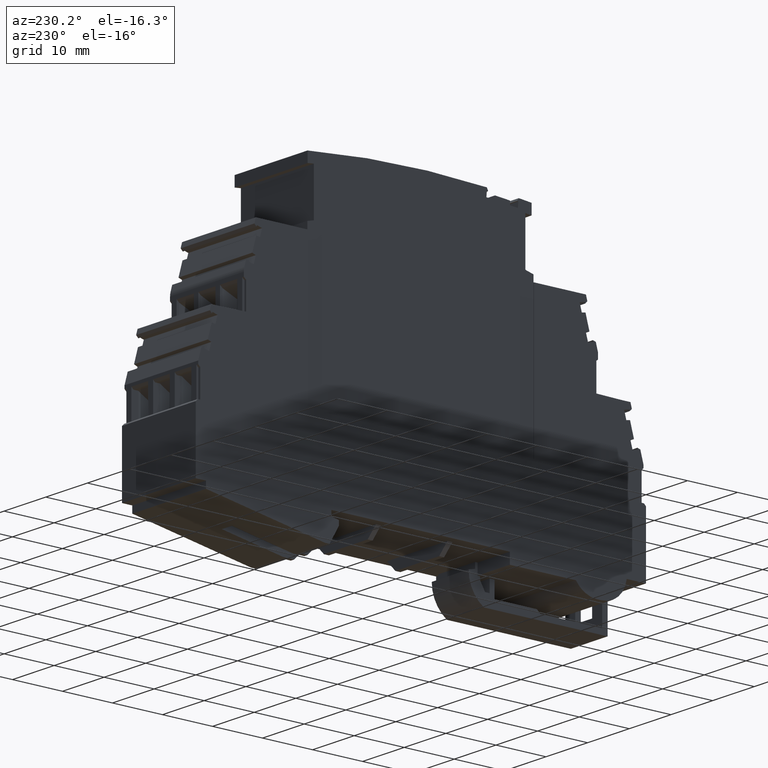
[diagram: clean part render]
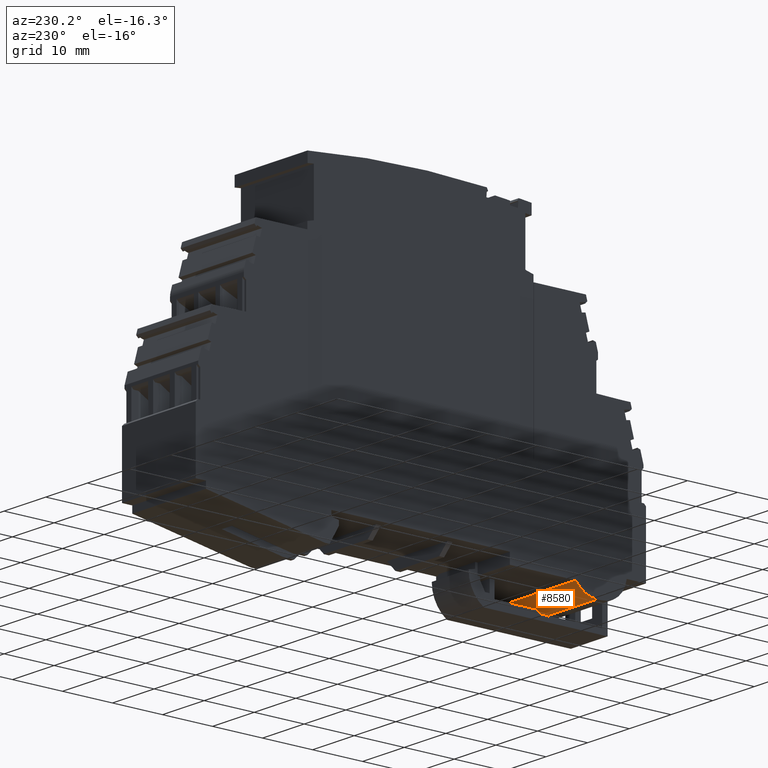
[diagram: same view with one face highlighted and labeled with its STEP entity id]
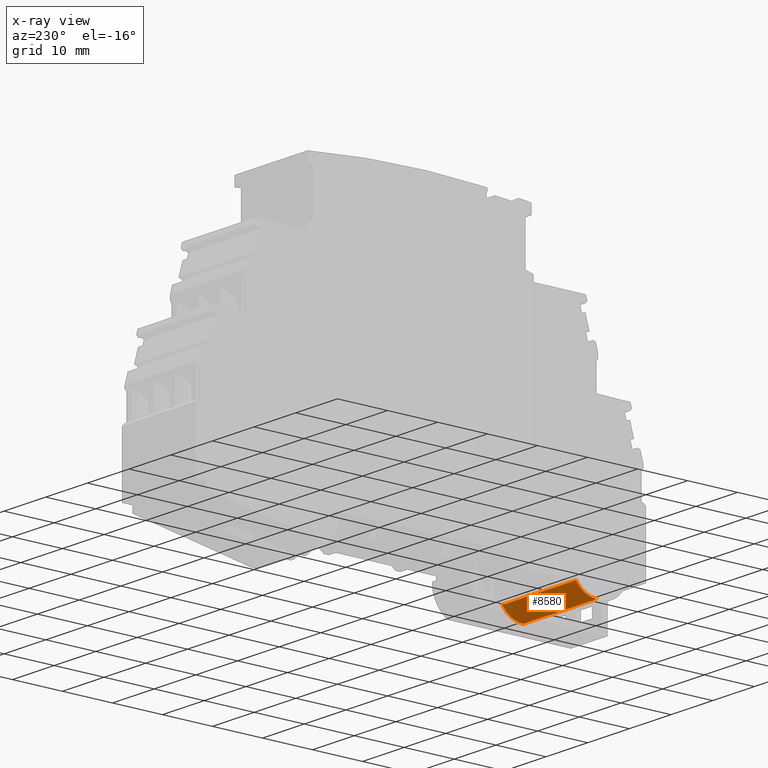
[diagram: x-ray of the same camera — body ghosted, the highlighted face saturated]
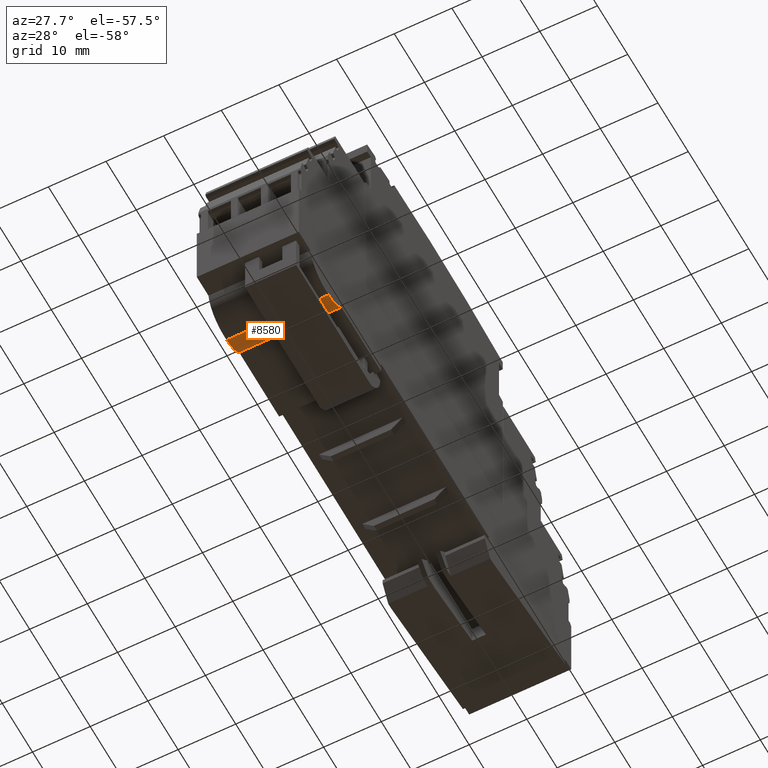
[diagram: same view with one face highlighted and labeled with its STEP entity id]
A machine part, auxiliary view. The second image highlights one B-rep face of the part: STEP entity #8580.
The next image is the same camera in x-ray: the body ghosted, the highlighted face saturated — about 5% of this face is hidden behind the body in this view.
A second angle (auxiliary view) of the same face is appended — the face is thin or edge-on in the first view.
In plain terms, the highlighted cylindrical surface (edge-blend (fillet) strip) has radius 5 mm, axis along (1, -0, -0).
Its self-contained STEP definition (entity closure, byte-faithful):
#6050=CARTESIAN_POINT('',(100.33552798852,12.9562740524428,
-49.4595517602489));
#6060=VERTEX_POINT('',#6050);
#6090=CARTESIAN_POINT('',(104.511351260642,15.7062740524428,
-49.4595517602489));
#6100=DIRECTION('',(1.22455682824757E-16,-2.60974393670053E-32,-1.));
#6110=DIRECTION('',(-1.,-1.20996962449382E-16,-1.22455682824757E-16));
#6120=AXIS2_PLACEMENT_3D('',#6090,#6100,#6110);
#6130=CIRCLE('',#6120,5.);
#6140=CARTESIAN_POINT('',(104.511351260642,10.7062740524428,
-49.4595517602489));
#6150=VERTEX_POINT('',#6140);
#6160=EDGE_CURVE('',#6150,#6060,#6130,.T.);
#8270=CARTESIAN_POINT('',(104.511351260642,15.7062740524428,
-31.7595517602489));
#8280=DIRECTION('',(1.22455682824757E-16,-2.60974393670053E-32,-1.));
#8290=DIRECTION('',(-1.,-1.20996962449382E-16,-1.22455682824757E-16));
#8300=AXIS2_PLACEMENT_3D('',#8270,#8280,#8290);
#8310=CYLINDRICAL_SURFACE('',#8300,5.);
#8320=CARTESIAN_POINT('',(104.511351260642,10.7062740524428,
-31.7595517602489));
#8330=DIRECTION('',(1.22455682824757E-16,-2.60974393670053E-32,-1.));
#8340=VECTOR('',#8330,1.);
#8350=LINE('',#8320,#8340);
#8360=CARTESIAN_POINT('',(104.511351260642,10.7062740524428,
-31.7595517602489));
#8370=VERTEX_POINT('',#8360);
#8380=EDGE_CURVE('',#8370,#6150,#8350,.T.);
#8390=ORIENTED_EDGE('',*,*,#8380,.F.);
#8400=ORIENTED_EDGE('',*,*,#6160,.F.);
#8410=CARTESIAN_POINT('',(100.33552798852,12.9562740524428,
-31.7595517602489));
#8420=DIRECTION('',(1.22455682824757E-16,-2.60974393670053E-32,-1.));
#8430=VECTOR('',#8420,1.);
#8440=LINE('',#8410,#8430);
#8450=CARTESIAN_POINT('',(100.33552798852,12.9562740524428,
-31.7595517602489));
#8460=VERTEX_POINT('',#8450);
#8470=EDGE_CURVE('',#8460,#6060,#8440,.T.);
#8480=ORIENTED_EDGE('',*,*,#8470,.T.);
#8490=CARTESIAN_POINT('',(104.511351260642,15.7062740524428,
-31.7595517602489));
#8500=DIRECTION('',(1.22455682824757E-16,-2.60974393670053E-32,-1.));
#8510=DIRECTION('',(-1.,-1.20996962449382E-16,-1.22455682824757E-16));
#8520=AXIS2_PLACEMENT_3D('',#8490,#8500,#8510);
#8530=CIRCLE('',#8520,5.);
#8540=EDGE_CURVE('',#8370,#8460,#8530,.T.);
#8550=ORIENTED_EDGE('',*,*,#8540,.T.);
#8560=EDGE_LOOP('',(#8550,#8480,#8400,#8390));
#8570=FACE_OUTER_BOUND('',#8560,.T.);
#8580=ADVANCED_FACE('',(#8570),#8310,.T.);